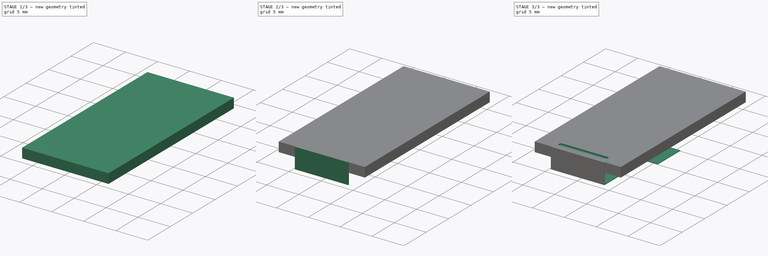
[diagram: build sequence overview — one tinted view per stage of 3, left to right]
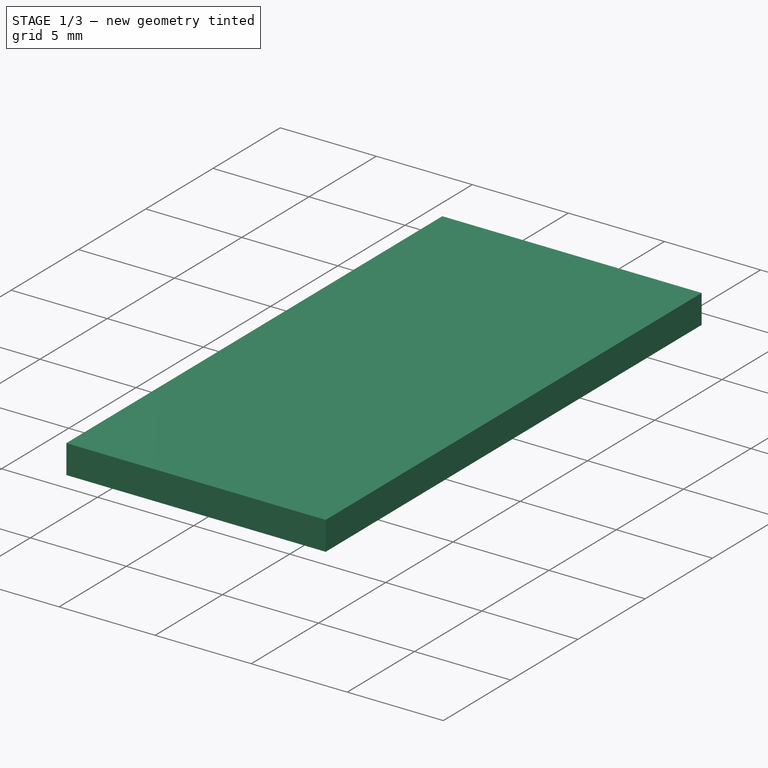
[diagram: stage 1 of 3 — iso view after this stage's code; geometry added in this stage tinted green]
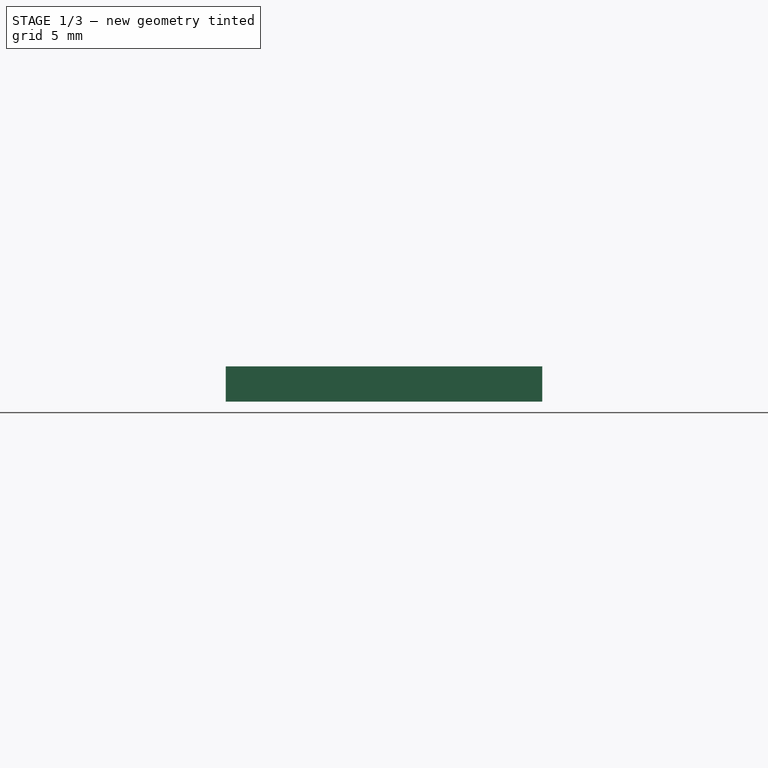
[diagram: stage 1 of 3 — front view after this stage's code; geometry added in this stage tinted green]
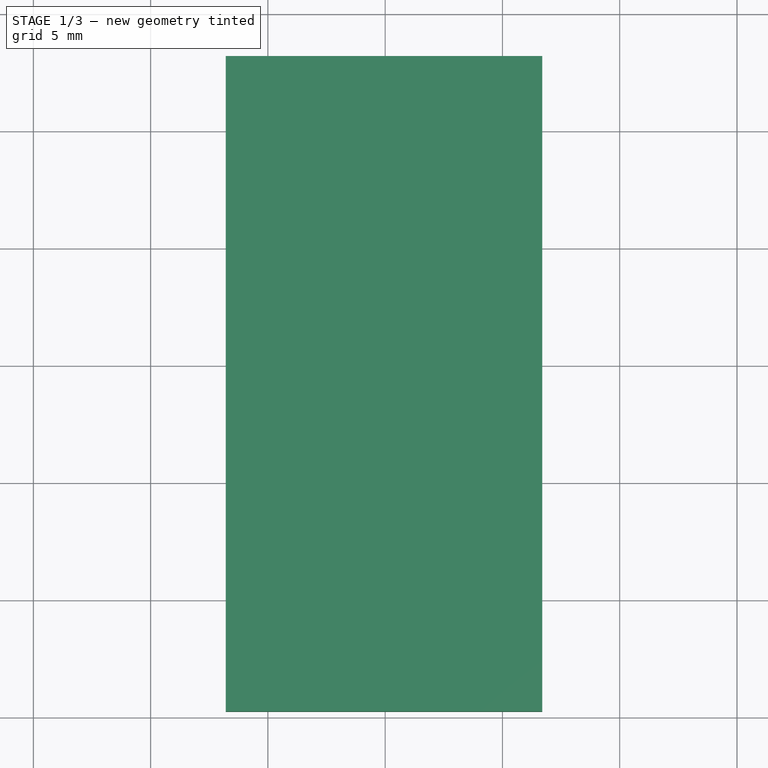
[diagram: stage 1 of 3 — top view after this stage's code; geometry added in this stage tinted green]
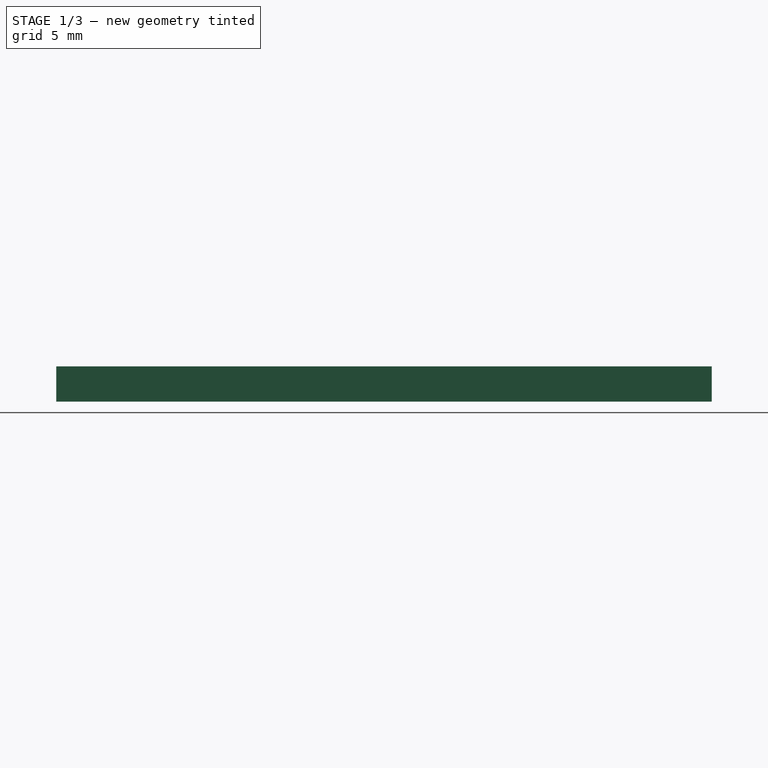
[diagram: stage 1 of 3 — right view after this stage's code; geometry added in this stage tinted green]
FCSTD DOCUMENT  (FreeCAD 0.20R29177 +426 (Git))
Label: 0.96Inch-LCD-3D-Model
License: All rights reserved
LicenseURL: http://en.wikipedia.org/wiki/All_rights_reserved
objects: Sketcher::SketchObject×8, PartDesign::Pad×7, PartDesign::Pocket×1, PartDesign::Body×1
note: 25 computed .brp shape members not serialized (recipe doc carries the construction recipe); baked Part::Feature solids carry a one-line shape summary decoded from their .brp

FEATURE [Sketcher::SketchObject] Sketch
  FullyConstrained = true
  MapMode = 5
  Support = -> [XY_Plane]
  sketch-geometry (4):
    g0: LineSegment StartX=-5.4 StartY=10.85 StartZ=0 EndX=5.4 EndY=10.85 EndZ=0
    g1: LineSegment StartX=5.4 StartY=10.85 StartZ=0 EndX=5.4 EndY=-10.85 EndZ=0
    g2: LineSegment StartX=5.4 StartY=-10.85 StartZ=0 EndX=-5.4 EndY=-10.85 EndZ=0
    g3: LineSegment StartX=-5.4 StartY=-10.85 StartZ=0 EndX=-5.4 EndY=10.85 EndZ=0
  constraints (11):
    c: Coincident(g0,g1)
    c: Coincident(g1,g2)
    c: Coincident(g2,g3)
    c: Coincident(g3,g0)
    c: Horizontal(g0)
    c: Horizontal(g2)
    c: Vertical(g1)
    c: Vertical(g3)
    c: DistanceY(g3,g3) = 21.7
    c: DistanceX(g0,g0) = 10.8
    c: Symmetric(g0,g1,g-1)
FEATURE [PartDesign::Pad] Pad
  Direction = (0,0,1)
  Length = 0.5
  Length2 = 10
  Profile = -> Sketch
  ReferenceAxis = -> Sketch [N_Axis]
  Type = 0
FEATURE [Sketcher::SketchObject] Sketch001
  FullyConstrained = true
  MapMode = 5
  Placement = pos=(0,0,0.5) rot=(0,0,1;0rad)
  Support = -> [Pad]
  sketch-geometry (4):
    g0: LineSegment StartX=-6.4 StartY=12.3 StartZ=0 EndX=6.4 EndY=12.3 EndZ=0
    g1: LineSegment StartX=6.4 StartY=12.3 StartZ=0 EndX=6.4 EndY=-12.3 EndZ=0
    g2: LineSegment StartX=6.4 StartY=-12.3 StartZ=0 EndX=-6.4 EndY=-12.3 EndZ=0
    g3: LineSegment StartX=-6.4 StartY=-12.3 StartZ=0 EndX=-6.4 EndY=12.3 EndZ=0
  constraints (11):
    c: Coincident(g0,g1)
    c: Coincident(g1,g2)
    c: Coincident(g2,g3)
    c: Coincident(g3,g0)
    c: Horizontal(g0)
    c: Horizontal(g2)
    c: Vertical(g1)
    c: Vertical(g3)
    c: DistanceX(g0,g0) = 12.8
    c: DistanceY(g3,g3) = 24.6
    c: Symmetric(g0,g1,g-1)
FEATURE [PartDesign::Pad] Pad001
  BaseFeature = -> Pad
  Direction = (0,0,1)
  Length = 0.6
  Length2 = 10
  Profile = -> Sketch001
  ReferenceAxis = -> Sketch001 [N_Axis]
  Reversed = true
  Type = 0
FEATURE [Sketcher::SketchObject] Sketch002
  ExternalGeometry = -> [Pad001,Sketch001]
  FullyConstrained = true
  MapMode = 5
  Placement = pos=(0,0,0.5) rot=(0,0,1;0rad)
  Support = -> [Pad001]
  sketch-geometry (4):
    g0: LineSegment StartX=-6.8 StartY=13.2 StartZ=0 EndX=6.7 EndY=13.2 EndZ=0
    g1: LineSegment StartX=6.7 StartY=13.2 StartZ=0 EndX=6.7 EndY=-14.75 EndZ=0
    g2: LineSegment StartX=6.7 StartY=-14.75 StartZ=0 EndX=-6.8 EndY=-14.75 EndZ=0
    g3: LineSegment StartX=-6.8 StartY=-14.75 StartZ=0 EndX=-6.8 EndY=13.2 EndZ=0
  constraints (12):
    c: Coincident(g0,g1)
    c: Coincident(g1,g2)
    c: Coincident(g2,g3)
    c: Coincident(g3,g0)
    c: Horizontal(g0)
    c: Horizontal(g2)
    c: Vertical(g1)
    c: Vertical(g3)
    c: DistanceX(g0,g0) = 13.5
    c: DistanceY(g3,g3) = 27.95
    c: Distance(g0,g-4) = 0.9
    c: Distance(g-4,g1) = 0.3
FEATURE [PartDesign::Pad] Pad002
  BaseFeature = -> Pad001
  Direction = (0,0,1)
  Length = 1.5
  Length2 = 10
  Profile = -> Sketch002
  ReferenceAxis = -> Sketch002 [N_Axis]
  Reversed = true
  Type = 0
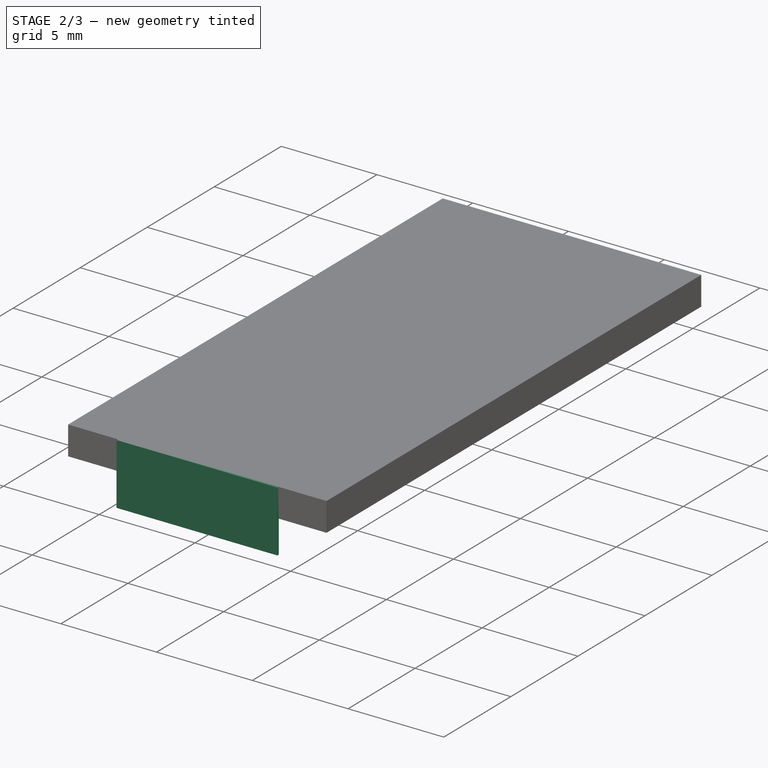
[diagram: stage 2 of 3 — iso view after this stage's code; geometry added in this stage tinted green]
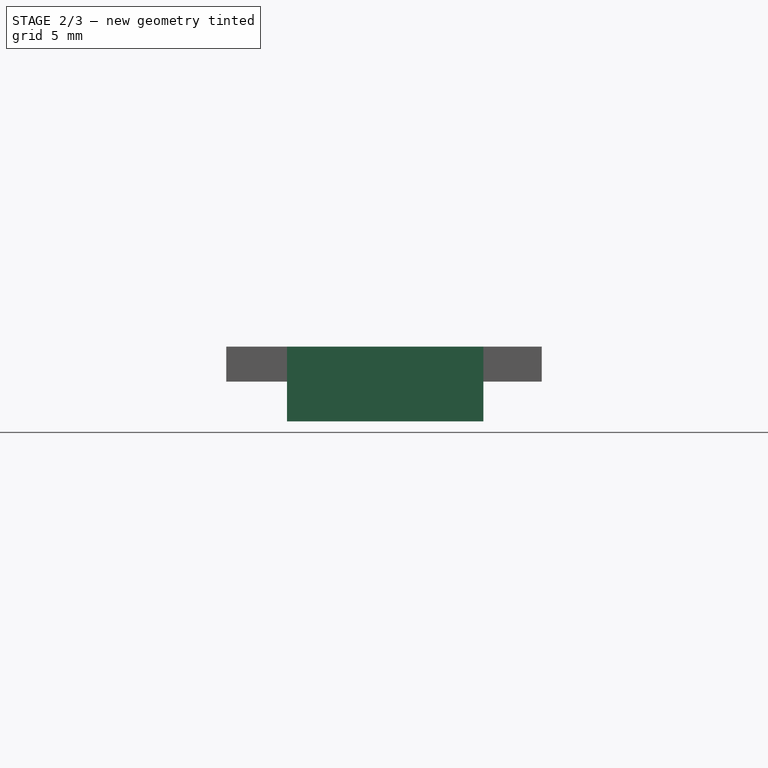
[diagram: stage 2 of 3 — front view after this stage's code; geometry added in this stage tinted green]
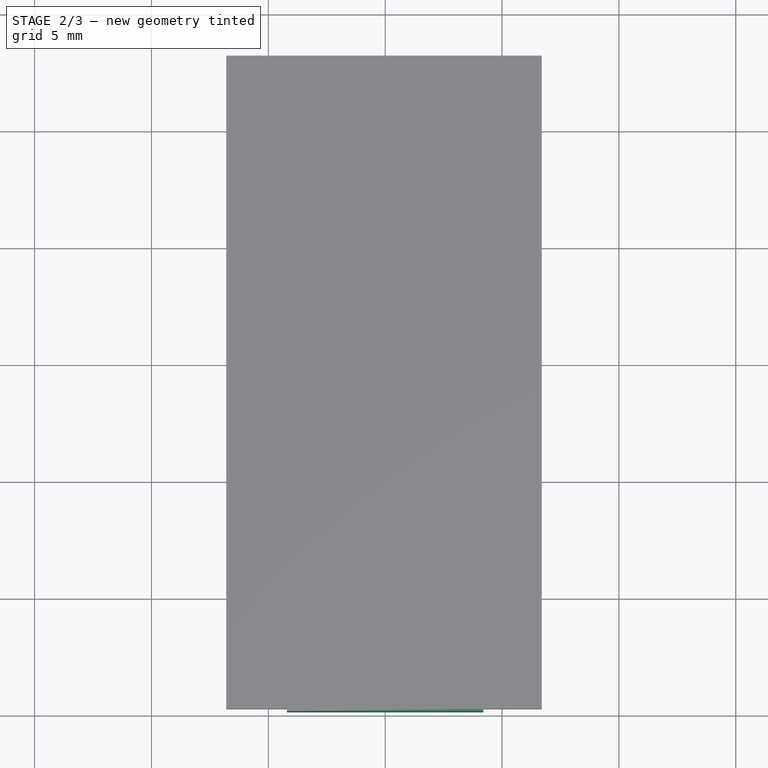
[diagram: stage 2 of 3 — top view after this stage's code; geometry added in this stage tinted green]
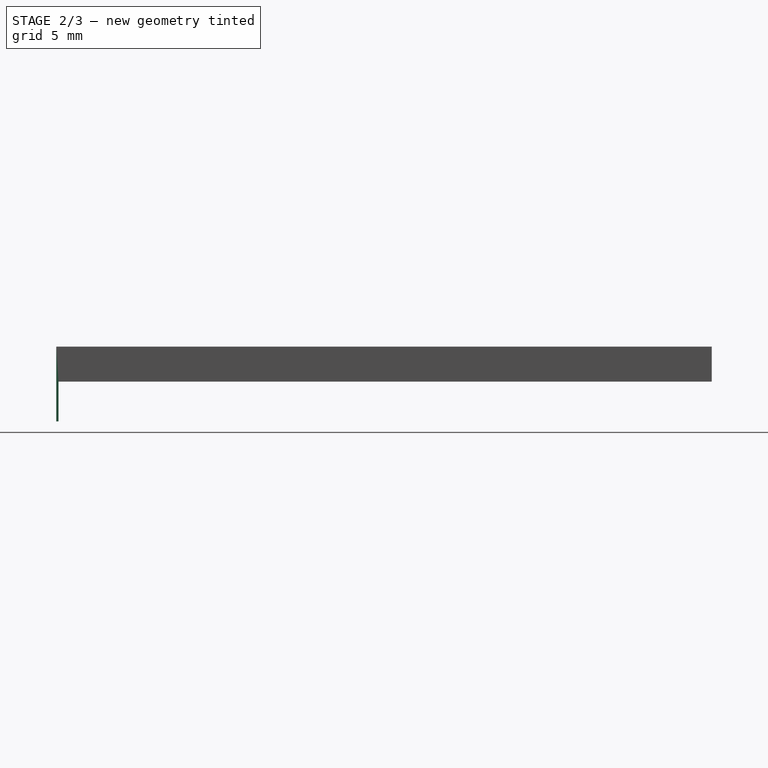
[diagram: stage 2 of 3 — right view after this stage's code; geometry added in this stage tinted green]
FEATURE [Sketcher::SketchObject] Sketch003
  ExternalGeometry = -> [Pad002]
  FullyConstrained = true
  MapMode = 5
  Placement = pos=(0,-14.75,0) rot=(1,0,0;1.5708rad)
  Support = -> [Pad002]
  sketch-geometry (4):
    g0: LineSegment StartX=-4.2 StartY=0.5 StartZ=0 EndX=4.2 EndY=0.5 EndZ=0
    g1: LineSegment StartX=4.2 StartY=0.5 StartZ=0 EndX=4.2 EndY=-1 EndZ=0
    g2: LineSegment StartX=4.2 StartY=-1 StartZ=0 EndX=-4.2 EndY=-1 EndZ=0
    g3: LineSegment StartX=-4.2 StartY=-1 StartZ=0 EndX=-4.2 EndY=0.5 EndZ=0
  constraints (11):
    c: Coincident(g0,g1)
    c: Coincident(g1,g2)
    c: Coincident(g2,g3)
    c: Coincident(g3,g0)
    c: Horizontal(g2)
    c: Vertical(g1)
    c: Vertical(g3)
    c: PointOnObject(g2,g-3)
    c: PointOnObject(g0,g-4)
    c: DistanceX(g2,g2) = 8.4
    c: Symmetric(g0,g0,g-2)
FEATURE [PartDesign::Pad] Pad003
  BaseFeature = -> Pad002
  Direction = (0,-1,2e-16)
  Length = 0.1
  Length2 = 10
  Profile = -> Sketch003
  ReferenceAxis = -> Sketch003 [N_Axis]
  Type = 0
FEATURE [Sketcher::SketchObject] Sketch004
  FullyConstrained = true
  MapMode = 5
  Placement = pos=(0,1e-16,0.5) rot=(0,0,1;0rad)
  Support = -> [Pad003]
FEATURE [PartDesign::Pad] Pad004
  BaseFeature = -> Pad003
  Direction = (0,-2e-16,-1)
  Length = 1.7
  Length2 = 10
  Profile = -> Pad003 [Face10]
  Type = 0
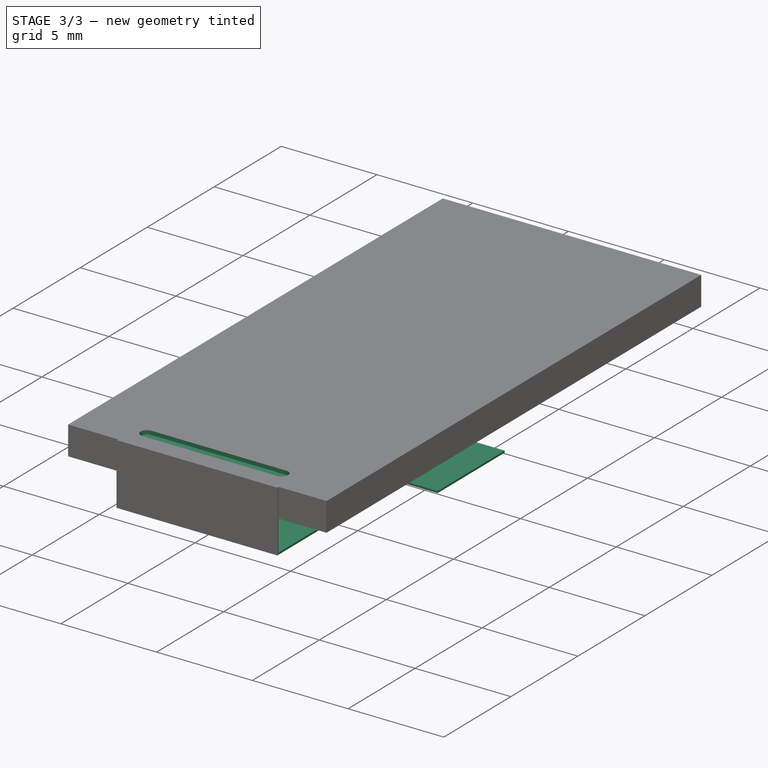
[diagram: stage 3 of 3 — iso view after this stage's code; geometry added in this stage tinted green]
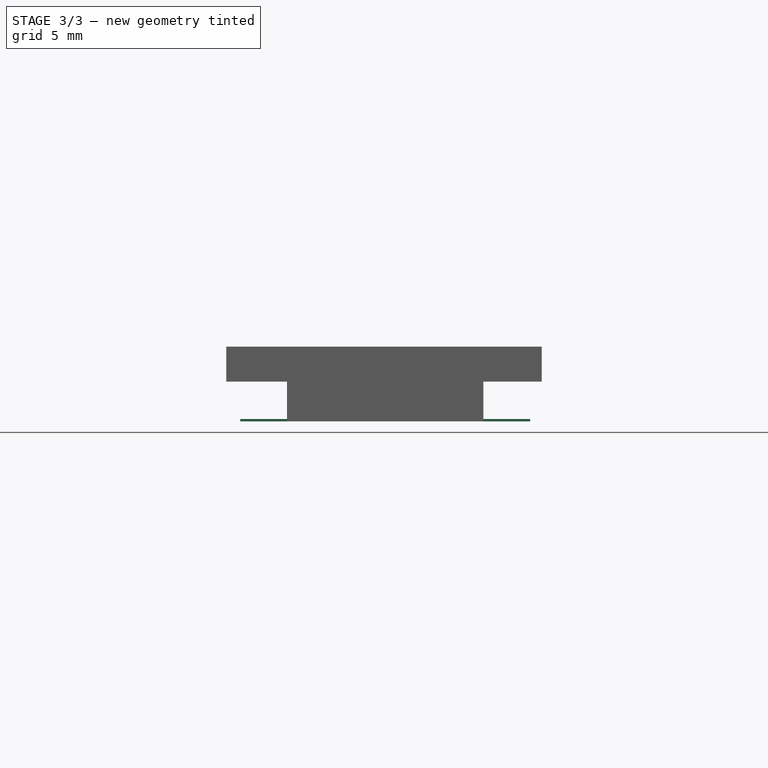
[diagram: stage 3 of 3 — front view after this stage's code; geometry added in this stage tinted green]
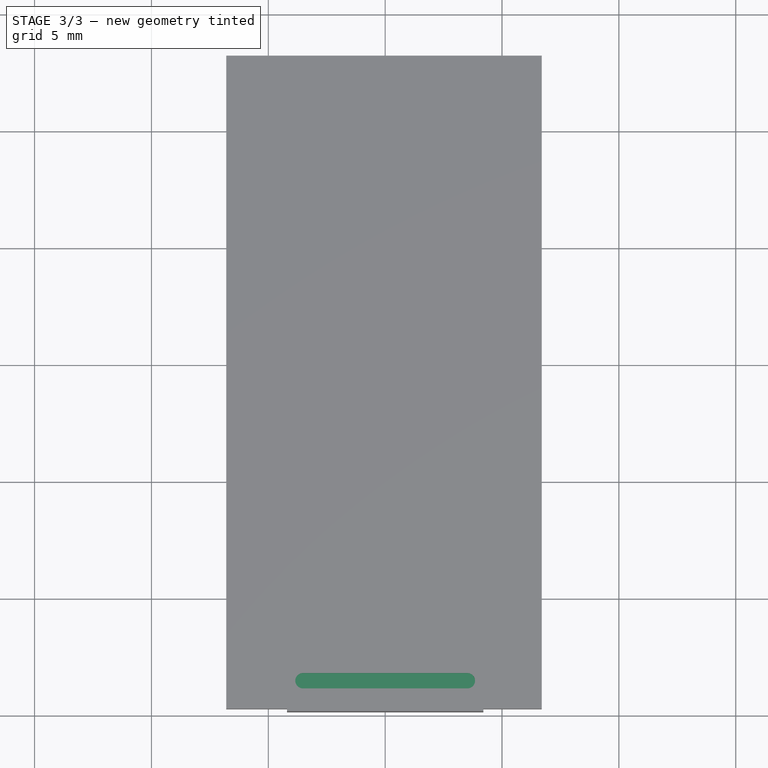
[diagram: stage 3 of 3 — top view after this stage's code; geometry added in this stage tinted green]
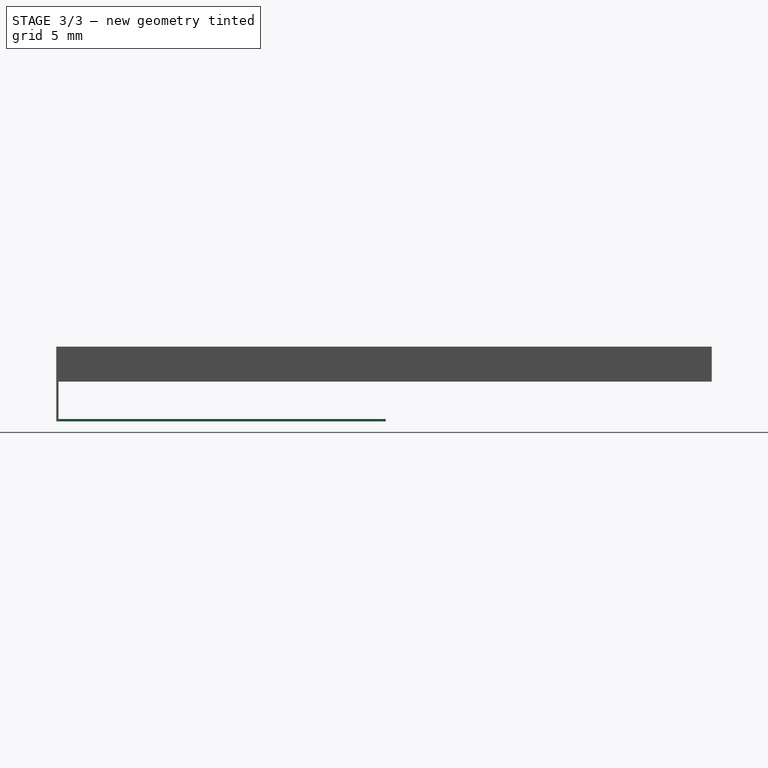
[diagram: stage 3 of 3 — right view after this stage's code; geometry added in this stage tinted green]
FEATURE [Sketcher::SketchObject] Sketch005
  ExternalGeometry = -> [Pad004]
  FullyConstrained = true
  MapMode = 5
  Placement = pos=(0,-14.75,3.2e-15) rot=(0,0.707107,0.707107;3.14159rad)
  Support = -> [Pad004]
  sketch-geometry (4):
    g0: LineSegment StartX=-4.2 StartY=-2.6 StartZ=0 EndX=4.2 EndY=-2.6 EndZ=0
    g1: LineSegment StartX=4.2 StartY=-2.6 StartZ=0 EndX=4.2 EndY=-2.7 EndZ=0
    g2: LineSegment StartX=4.2 StartY=-2.7 StartZ=0 EndX=-4.2 EndY=-2.7 EndZ=0
    g3: LineSegment StartX=-4.2 StartY=-2.7 StartZ=0 EndX=-4.2 EndY=-2.6 EndZ=0
  constraints (10):
    c: Coincident(g0,g1)
    c: Coincident(g1,g2)
    c: Coincident(g2,g3)
    c: Coincident(g3,g0)
    c: Horizontal(g0)
    c: Vertical(g1)
    c: Vertical(g3)
    c: DistanceY(g1,g1) = 0.1
    c: Coincident(g1,g-4)
    c: Coincident(g2,g-5)
FEATURE [PartDesign::Pad] Pad005
  BaseFeature = -> Pad004
  Direction = (0,1,-2e-16)
  Length = 14
  Length2 = 10
  Profile = -> Sketch005
  ReferenceAxis = -> Sketch005 [N_Axis]
  Type = 0
FEATURE [Sketcher::SketchObject] Sketch006
  ExternalGeometry = -> [Pad005]
  FullyConstrained = true
  MapMode = 5
  Placement = pos=(0,-6e-16,-2.7) rot=(1,0,0;3.14159rad)
  Support = -> [Pad005]
  sketch-geometry (4):
    g0: LineSegment StartX=-6.2 StartY=5.75 StartZ=0 EndX=6.2 EndY=5.75 EndZ=0
    g1: LineSegment StartX=6.2 StartY=5.75 StartZ=0 EndX=6.2 EndY=0.75 EndZ=0
    g2: LineSegment StartX=6.2 StartY=0.75 StartZ=0 EndX=-6.2 EndY=0.75 EndZ=0
    g3: LineSegment StartX=-6.2 StartY=0.75 StartZ=0 EndX=-6.2 EndY=5.75 EndZ=0
  constraints (11):
    c: Coincident(g0,g1)
    c: Coincident(g1,g2)
    c: Coincident(g2,g3)
    c: Coincident(g3,g0)
    c: Horizontal(g0)
    c: Vertical(g1)
    c: Vertical(g3)
    c: DistanceY(g3,g3) = 5
    c: DistanceX(g2,g2) = 12.4
    c: Symmetric(g2,g1,g-2)
    c: PointOnObject(g-4,g2)
FEATURE [PartDesign::Pad] Pad006
  BaseFeature = -> Pad005
  Direction = (0,-2e-16,-1)
  Length = 0.1
  Length2 = 10
  Profile = -> Sketch006
  ReferenceAxis = -> Sketch006 [N_Axis]
  Reversed = true
  Type = 0
FEATURE [Sketcher::SketchObject] Sketch007
  ExternalGeometry = -> [Pad006]
  FullyConstrained = true
  MapMode = 5
  Placement = pos=(0,0,0.5) rot=(0,0,1;0rad)
  Support = -> [Pad006]
  sketch-geometry (4):
    g0: ArcOfCircle CenterX=-3.515 CenterY=-13.55 CenterZ=0 NormalX=0 NormalY=0 NormalZ=1 AngleXU=0 Radius=0.33 StartAngle=1.5708 EndAngle=4.71239
    g1: ArcOfCircle CenterX=3.515 CenterY=-13.55 CenterZ=0 NormalX=0 NormalY=0 NormalZ=1 AngleXU=0 Radius=0.33 StartAngle=4.71239 EndAngle=7.85398
    g2: LineSegment StartX=-3.515 StartY=-13.88 StartZ=0 EndX=3.515 EndY=-13.88 EndZ=0
    g3: LineSegment StartX=3.515 StartY=-13.22 StartZ=0 EndX=-3.515 EndY=-13.22 EndZ=0
  constraints (9):
    c: Tangent(g0,g2) = -1.5708
    c: Tangent(g2,g1) = -1.5708
    c: Tangent(g1,g3) = -1.5708
    c: Tangent(g3,g0) = -1.5708
    c: Equal(g0,g1)
    c: Symmetric(g0,g1,g-2)
    c: Distance(g0,g1) = 7.03
    c: Distance(g0,g2) = 0.66
    c: Distance(g0,g-3) = 1.2
FEATURE [PartDesign::Pocket] Pocket
  BaseFeature = -> Pad006
  Direction = (0,0,-1)
  Length = 0.2
  Length2 = 5
  Profile = -> Sketch007
  ReferenceAxis = -> Sketch007 [N_Axis]
  Type = 0
FEATURE [PartDesign::Body] Body
  Group = -> [Sketch,Pad,Sketch001,Pad001,Sketch002,Pad002,Sketch003,Pad003,Sketch004,Pad004,Sketch005,Pad005,Sketch006,Pad006,Sketch007,Pocket]
  Origin = -> Origin
  Tip = -> Pocket
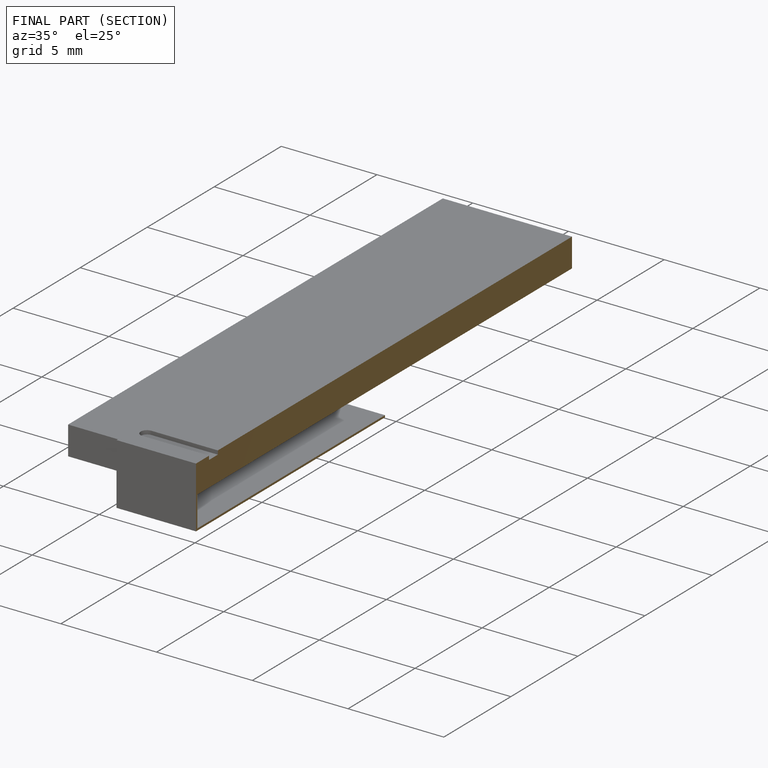
[diagram: finished part — half-section view (interior)]
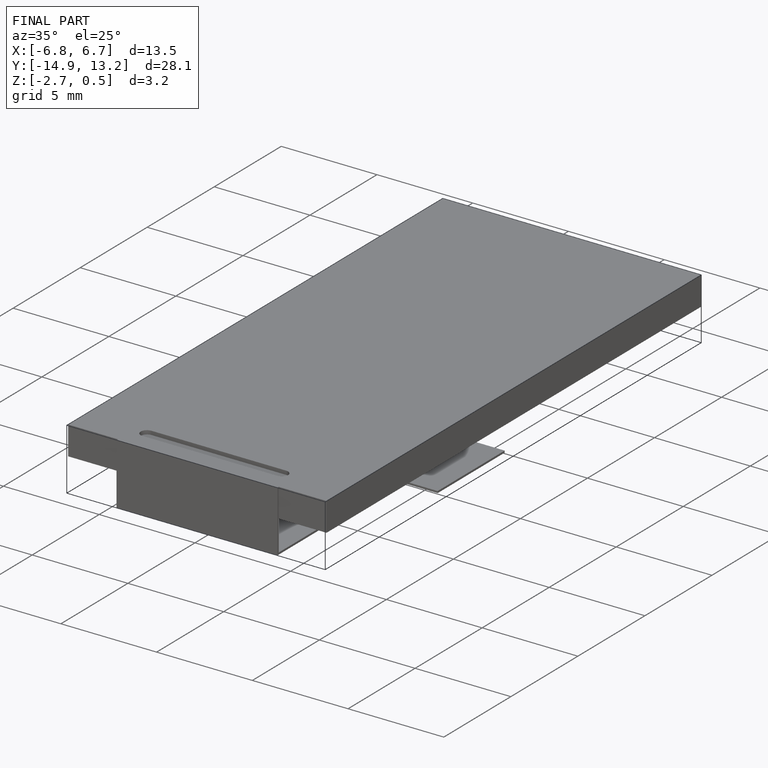
[diagram: finished part — iso view with bounding-box wireframe]
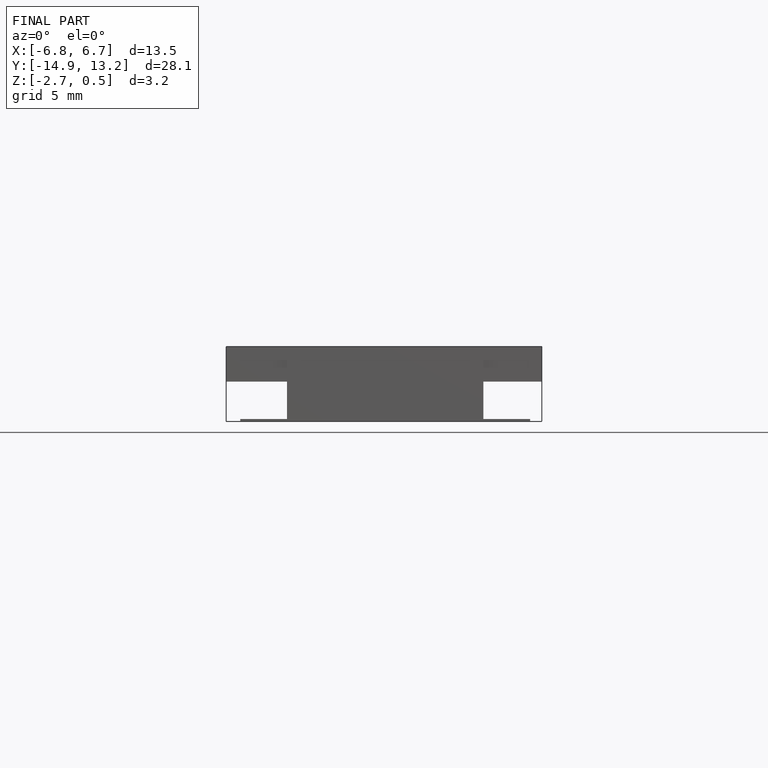
[diagram: finished part — front view with bounding-box wireframe]
